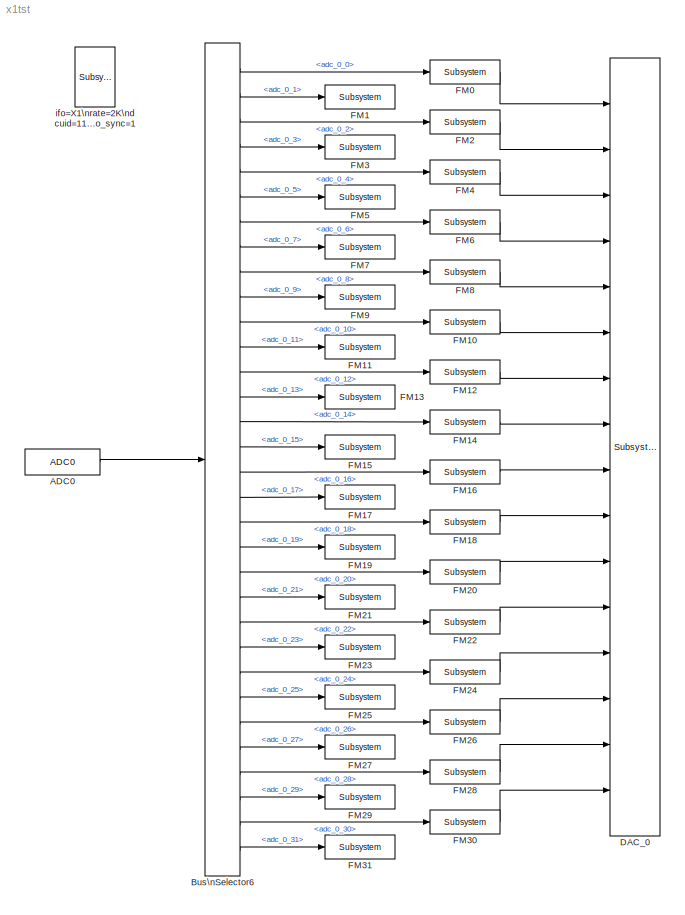
MODEL x1tst
KIND model
BLOCK [Reference] ADC0  REF=cdsAdcx0/ADC0
  AllowZeroVariantControls = off
  AttributesFormatString = %<Description>\\n%<Tag>
  Description = type-GSC_16AI64SSA\ncard_num=0
  GeneratePreprocessorConditionals = off
  Ports = [0, 1]
  PropagateVariantConditions = off
  SID = 931
  ShowPortLabels = FromPortIcon
  SourceBlock = cdsAdcx0/ADC0
  SourceType = SubSystem
  SystemSampleTime = -1
  Tag = cdsAdc
BLOCK [BusSelector] Bus\nSelector6
  AttributesFormatString = %<Description>
  Description = ADC Selector
  OutputAsBus = off
  OutputSignals = adc_0_0,adc_0_1,adc_0_2,adc_0_3,adc_0_4,adc_0_5,adc_0_6,adc_0_7,adc_0_8,adc_0_9,adc_0_10,adc_0_11,adc_0_12,adc_0_13,adc_0_14,adc_0_15,adc_0_16,adc_0_17,adc_0_18,adc_0_19,adc_0_20,adc_0_21,adc_0_22,adc_0_23,adc_0_24,adc_0_25,adc_0_26,adc_0_27,adc_0_28,adc_0_29,adc_0_30,adc_0_31
  Ports = [1, 32]
  SID = 936
BLOCK [Reference] DAC_0  REF=dac/Subsystem  (lib defined in slx_40ef132df75b, slx_b7657ccccc5b, +4 more)
  AllowZeroVariantControls = off
  AttributesFormatString = %<Description>
  Description = type=GSC_16AO16,\ncard_num=0
  GeneratePreprocessorConditionals = off
  Ports = [16]
  PropagateVariantConditions = off
  SID = 1206
  ShowPortLabels = FromPortIcon
  SourceBlock = dac/Subsystem
  SourceType = SubSystem
  SystemSampleTime = -1
BLOCK [Reference] FM0  REF=cdsFilt/Subsystem
  AllowZeroVariantControls = off
  AttributesFormatString = %<Tag>
  Description = Purpose:                                                                                                                                                                                                                                  \nStandard CDS IIR filter module.                                                                                                                                     ...<+1302ch>  <repeated x32 — deduplicated; at blocks: FM0, FM1, FM10, FM11, FM12, FM13, FM14, FM15, FM16, FM17, FM18, FM19, FM2, FM20, FM21, FM22, +16 more>
  GeneratePreprocessorConditionals = off
  Ports = [1, 1]
  PropagateVariantConditions = off
  SID = 941
  ShowPortLabels = FromPortIcon
  SourceBlock = cdsFilt/Subsystem
  SourceType = SubSystem
  SystemSampleTime = -1
  Tag = cdsFilt
BLOCK [Reference] FM1  REF=cdsFilt/Subsystem
  AllowZeroVariantControls = off
  AttributesFormatString = %<Tag>
  GeneratePreprocessorConditionals = off
  Ports = [1, 1]
  PropagateVariantConditions = off
  SID = 942
  ShowPortLabels = FromPortIcon
  SourceBlock = cdsFilt/Subsystem
  SourceType = SubSystem
  SystemSampleTime = -1
  Tag = cdsFilt
BLOCK [Reference] FM10  REF=cdsFilt/Subsystem
  AllowZeroVariantControls = off
  AttributesFormatString = %<Tag>
  GeneratePreprocessorConditionals = off
  Ports = [1, 1]
  PropagateVariantConditions = off
  SID = 956
  ShowPortLabels = FromPortIcon
  SourceBlock = cdsFilt/Subsystem
  SourceType = SubSystem
  SystemSampleTime = -1
  Tag = cdsFilt
BLOCK [Reference] FM11  REF=cdsFilt/Subsystem
  AllowZeroVariantControls = off
  AttributesFormatString = %<Tag>
  GeneratePreprocessorConditionals = off
  Ports = [1, 1]
  PropagateVariantConditions = off
  SID = 957
  ShowPortLabels = FromPortIcon
  SourceBlock = cdsFilt/Subsystem
  SourceType = SubSystem
  SystemSampleTime = -1
  Tag = cdsFilt
BLOCK [Reference] FM12  REF=cdsFilt/Subsystem
  AllowZeroVariantControls = off
  AttributesFormatString = %<Tag>
  GeneratePreprocessorConditionals = off
  Ports = [1, 1]
  PropagateVariantConditions = off
  SID = 958
  ShowPortLabels = FromPortIcon
  SourceBlock = cdsFilt/Subsystem
  SourceType = SubSystem
  SystemSampleTime = -1
  Tag = cdsFilt
BLOCK [Reference] FM13  REF=cdsFilt/Subsystem
  AllowZeroVariantControls = off
  AttributesFormatString = %<Tag>
  GeneratePreprocessorConditionals = off
  Ports = [1, 1]
  PropagateVariantConditions = off
  SID = 959
  ShowPortLabels = FromPortIcon
  SourceBlock = cdsFilt/Subsystem
  SourceType = SubSystem
  SystemSampleTime = -1
  Tag = cdsFilt
BLOCK [Reference] FM14  REF=cdsFilt/Subsystem
  AllowZeroVariantControls = off
  AttributesFormatString = %<Tag>
  GeneratePreprocessorConditionals = off
  Ports = [1, 1]
  PropagateVariantConditions = off
  SID = 960
  ShowPortLabels = FromPortIcon
  SourceBlock = cdsFilt/Subsystem
  SourceType = SubSystem
  SystemSampleTime = -1
  Tag = cdsFilt
BLOCK [Reference] FM15  REF=cdsFilt/Subsystem
  AllowZeroVariantControls = off
  AttributesFormatString = %<Tag>
  GeneratePreprocessorConditionals = off
  Ports = [1, 1]
  PropagateVariantConditions = off
  SID = 961
  ShowPortLabels = FromPortIcon
  SourceBlock = cdsFilt/Subsystem
  SourceType = SubSystem
  SystemSampleTime = -1
  Tag = cdsFilt
BLOCK [Reference] FM16  REF=cdsFilt/Subsystem
  AllowZeroVariantControls = off
  AttributesFormatString = %<Tag>
  GeneratePreprocessorConditionals = off
  Ports = [1, 1]
  PropagateVariantConditions = off
  SID = 980
  ShowPortLabels = FromPortIcon
  SourceBlock = cdsFilt/Subsystem
  SourceType = SubSystem
  SystemSampleTime = -1
  Tag = cdsFilt
BLOCK [Reference] FM17  REF=cdsFilt/Subsystem
  AllowZeroVariantControls = off
  AttributesFormatString = %<Tag>
  GeneratePreprocessorConditionals = off
  Ports = [1, 1]
  PropagateVariantConditions = off
  SID = 981
  ShowPortLabels = FromPortIcon
  SourceBlock = cdsFilt/Subsystem
  SourceType = SubSystem
  SystemSampleTime = -1
  Tag = cdsFilt
BLOCK [Reference] FM18  REF=cdsFilt/Subsystem
  AllowZeroVariantControls = off
  AttributesFormatString = %<Tag>
  GeneratePreprocessorConditionals = off
  Ports = [1, 1]
  PropagateVariantConditions = off
  SID = 982
  ShowPortLabels = FromPortIcon
  SourceBlock = cdsFilt/Subsystem
  SourceType = SubSystem
  SystemSampleTime = -1
  Tag = cdsFilt
BLOCK [Reference] FM19  REF=cdsFilt/Subsystem
  AllowZeroVariantControls = off
  AttributesFormatString = %<Tag>
  GeneratePreprocessorConditionals = off
  Ports = [1, 1]
  PropagateVariantConditions = off
  SID = 983
  ShowPortLabels = FromPortIcon
  SourceBlock = cdsFilt/Subsystem
  SourceType = SubSystem
  SystemSampleTime = -1
  Tag = cdsFilt
BLOCK [Reference] FM2  REF=cdsFilt/Subsystem
  AllowZeroVariantControls = off
  AttributesFormatString = %<Tag>
  GeneratePreprocessorConditionals = off
  Ports = [1, 1]
  PropagateVariantConditions = off
  SID = 948
  ShowPortLabels = FromPortIcon
  SourceBlock = cdsFilt/Subsystem
  SourceType = SubSystem
  SystemSampleTime = -1
  Tag = cdsFilt
BLOCK [Reference] FM20  REF=cdsFilt/Subsystem
  AllowZeroVariantControls = off
  AttributesFormatString = %<Tag>
  GeneratePreprocessorConditionals = off
  Ports = [1, 1]
  PropagateVariantConditions = off
  SID = 984
  ShowPortLabels = FromPortIcon
  SourceBlock = cdsFilt/Subsystem
  SourceType = SubSystem
  SystemSampleTime = -1
  Tag = cdsFilt
BLOCK [Reference] FM21  REF=cdsFilt/Subsystem
  AllowZeroVariantControls = off
  AttributesFormatString = %<Tag>
  GeneratePreprocessorConditionals = off
  Ports = [1, 1]
  PropagateVariantConditions = off
  SID = 985
  ShowPortLabels = FromPortIcon
  SourceBlock = cdsFilt/Subsystem
  SourceType = SubSystem
  SystemSampleTime = -1
  Tag = cdsFilt
BLOCK [Reference] FM22  REF=cdsFilt/Subsystem
  AllowZeroVariantControls = off
  AttributesFormatString = %<Tag>
  GeneratePreprocessorConditionals = off
  Ports = [1, 1]
  PropagateVariantConditions = off
  SID = 986
  ShowPortLabels = FromPortIcon
  SourceBlock = cdsFilt/Subsystem
  SourceType = SubSystem
  SystemSampleTime = -1
  Tag = cdsFilt
BLOCK [Reference] FM23  REF=cdsFilt/Subsystem
  AllowZeroVariantControls = off
  AttributesFormatString = %<Tag>
  GeneratePreprocessorConditionals = off
  Ports = [1, 1]
  PropagateVariantConditions = off
  SID = 987
  ShowPortLabels = FromPortIcon
  SourceBlock = cdsFilt/Subsystem
  SourceType = SubSystem
  SystemSampleTime = -1
  Tag = cdsFilt
BLOCK [Reference] FM24  REF=cdsFilt/Subsystem
  AllowZeroVariantControls = off
  AttributesFormatString = %<Tag>
  GeneratePreprocessorConditionals = off
  Ports = [1, 1]
  PropagateVariantConditions = off
  SID = 988
  ShowPortLabels = FromPortIcon
  SourceBlock = cdsFilt/Subsystem
  SourceType = SubSystem
  SystemSampleTime = -1
  Tag = cdsFilt
BLOCK [Reference] FM25  REF=cdsFilt/Subsystem
  AllowZeroVariantControls = off
  AttributesFormatString = %<Tag>
  GeneratePreprocessorConditionals = off
  Ports = [1, 1]
  PropagateVariantConditions = off
  SID = 989
  ShowPortLabels = FromPortIcon
  SourceBlock = cdsFilt/Subsystem
  SourceType = SubSystem
  SystemSampleTime = -1
  Tag = cdsFilt
BLOCK [Reference] FM26  REF=cdsFilt/Subsystem
  AllowZeroVariantControls = off
  AttributesFormatString = %<Tag>
  GeneratePreprocessorConditionals = off
  Ports = [1, 1]
  PropagateVariantConditions = off
  SID = 990
  ShowPortLabels = FromPortIcon
  SourceBlock = cdsFilt/Subsystem
  SourceType = SubSystem
  SystemSampleTime = -1
  Tag = cdsFilt
BLOCK [Reference] FM27  REF=cdsFilt/Subsystem
  AllowZeroVariantControls = off
  AttributesFormatString = %<Tag>
  GeneratePreprocessorConditionals = off
  Ports = [1, 1]
  PropagateVariantConditions = off
  SID = 991
  ShowPortLabels = FromPortIcon
  SourceBlock = cdsFilt/Subsystem
  SourceType = SubSystem
  SystemSampleTime = -1
  Tag = cdsFilt
BLOCK [Reference] FM28  REF=cdsFilt/Subsystem
  AllowZeroVariantControls = off
  AttributesFormatString = %<Tag>
  GeneratePreprocessorConditionals = off
  Ports = [1, 1]
  PropagateVariantConditions = off
  SID = 992
  ShowPortLabels = FromPortIcon
  SourceBlock = cdsFilt/Subsystem
  SourceType = SubSystem
  SystemSampleTime = -1
  Tag = cdsFilt
BLOCK [Reference] FM29  REF=cdsFilt/Subsystem
  AllowZeroVariantControls = off
  AttributesFormatString = %<Tag>
  GeneratePreprocessorConditionals = off
  Ports = [1, 1]
  PropagateVariantConditions = off
  SID = 993
  ShowPortLabels = FromPortIcon
  SourceBlock = cdsFilt/Subsystem
  SourceType = SubSystem
  SystemSampleTime = -1
  Tag = cdsFilt
BLOCK [Reference] FM3  REF=cdsFilt/Subsystem
  AllowZeroVariantControls = off
  AttributesFormatString = %<Tag>
  GeneratePreprocessorConditionals = off
  Ports = [1, 1]
  PropagateVariantConditions = off
  SID = 949
  ShowPortLabels = FromPortIcon
  SourceBlock = cdsFilt/Subsystem
  SourceType = SubSystem
  SystemSampleTime = -1
  Tag = cdsFilt
BLOCK [Reference] FM30  REF=cdsFilt/Subsystem
  AllowZeroVariantControls = off
  AttributesFormatString = %<Tag>
  GeneratePreprocessorConditionals = off
  Ports = [1, 1]
  PropagateVariantConditions = off
  SID = 994
  ShowPortLabels = FromPortIcon
  SourceBlock = cdsFilt/Subsystem
  SourceType = SubSystem
  SystemSampleTime = -1
  Tag = cdsFilt
BLOCK [Reference] FM31  REF=cdsFilt/Subsystem
  AllowZeroVariantControls = off
  AttributesFormatString = %<Tag>
  GeneratePreprocessorConditionals = off
  Ports = [1, 1]
  PropagateVariantConditions = off
  SID = 995
  ShowPortLabels = FromPortIcon
  SourceBlock = cdsFilt/Subsystem
  SourceType = SubSystem
  SystemSampleTime = -1
  Tag = cdsFilt
BLOCK [Reference] FM4  REF=cdsFilt/Subsystem
  AllowZeroVariantControls = off
  AttributesFormatString = %<Tag>
  GeneratePreprocessorConditionals = off
  Ports = [1, 1]
  PropagateVariantConditions = off
  SID = 950
  ShowPortLabels = FromPortIcon
  SourceBlock = cdsFilt/Subsystem
  SourceType = SubSystem
  SystemSampleTime = -1
  Tag = cdsFilt
BLOCK [Reference] FM5  REF=cdsFilt/Subsystem
  AllowZeroVariantControls = off
  AttributesFormatString = %<Tag>
  GeneratePreprocessorConditionals = off
  Ports = [1, 1]
  PropagateVariantConditions = off
  SID = 951
  ShowPortLabels = FromPortIcon
  SourceBlock = cdsFilt/Subsystem
  SourceType = SubSystem
  SystemSampleTime = -1
  Tag = cdsFilt
BLOCK [Reference] FM6  REF=cdsFilt/Subsystem
  AllowZeroVariantControls = off
  AttributesFormatString = %<Tag>
  GeneratePreprocessorConditionals = off
  Ports = [1, 1]
  PropagateVariantConditions = off
  SID = 952
  ShowPortLabels = FromPortIcon
  SourceBlock = cdsFilt/Subsystem
  SourceType = SubSystem
  SystemSampleTime = -1
  Tag = cdsFilt
BLOCK [Reference] FM7  REF=cdsFilt/Subsystem
  AllowZeroVariantControls = off
  AttributesFormatString = %<Tag>
  GeneratePreprocessorConditionals = off
  Ports = [1, 1]
  PropagateVariantConditions = off
  SID = 953
  ShowPortLabels = FromPortIcon
  SourceBlock = cdsFilt/Subsystem
  SourceType = SubSystem
  SystemSampleTime = -1
  Tag = cdsFilt
BLOCK [Reference] FM8  REF=cdsFilt/Subsystem
  AllowZeroVariantControls = off
  AttributesFormatString = %<Tag>
  GeneratePreprocessorConditionals = off
  Ports = [1, 1]
  PropagateVariantConditions = off
  SID = 954
  ShowPortLabels = FromPortIcon
  SourceBlock = cdsFilt/Subsystem
  SourceType = SubSystem
  SystemSampleTime = -1
  Tag = cdsFilt
BLOCK [Reference] FM9  REF=cdsFilt/Subsystem
  AllowZeroVariantControls = off
  AttributesFormatString = %<Tag>
  GeneratePreprocessorConditionals = off
  Ports = [1, 1]
  PropagateVariantConditions = off
  SID = 955
  ShowPortLabels = FromPortIcon
  SourceBlock = cdsFilt/Subsystem
  SourceType = SubSystem
  SystemSampleTime = -1
  Tag = cdsFilt
BLOCK [Reference] ifo=X1\nrate=2K\ndcuid=11\nhost=dhcp-154\nshmem_daq=1\nspecific_cpu=2\nno_sync=1  REF=cdsParameters/Subsystem
  AllowZeroVariantControls = off
  AttributesFormatString = %<Tag>
  GeneratePreprocessorConditionals = off
  Ports = []
  PropagateVariantConditions = off
  SID = 1205
  ShowPortLabels = FromPortIcon
  SourceBlock = cdsParameters/Subsystem
  SourceType = SubSystem
  SystemSampleTime = -1
  Tag = cdsParameters
LINE ADC0:1 -> Bus\nSelector6:1
LINE Bus\nSelector6:1 -> FM0:1
LINE Bus\nSelector6:10 -> FM9:1
LINE Bus\nSelector6:11 -> FM10:1
LINE Bus\nSelector6:12 -> FM11:1
LINE Bus\nSelector6:13 -> FM12:1
LINE Bus\nSelector6:14 -> FM13:1
LINE Bus\nSelector6:15 -> FM14:1
LINE Bus\nSelector6:16 -> FM15:1
LINE Bus\nSelector6:17 -> FM16:1
LINE Bus\nSelector6:18 -> FM17:1
LINE Bus\nSelector6:19 -> FM18:1
LINE Bus\nSelector6:2 -> FM1:1
LINE Bus\nSelector6:20 -> FM19:1
LINE Bus\nSelector6:21 -> FM20:1
LINE Bus\nSelector6:22 -> FM21:1
LINE Bus\nSelector6:23 -> FM22:1
LINE Bus\nSelector6:24 -> FM23:1
LINE Bus\nSelector6:25 -> FM24:1
LINE Bus\nSelector6:26 -> FM25:1
LINE Bus\nSelector6:27 -> FM26:1
LINE Bus\nSelector6:28 -> FM27:1
LINE Bus\nSelector6:29 -> FM28:1
LINE Bus\nSelector6:3 -> FM2:1
LINE Bus\nSelector6:30 -> FM29:1
LINE Bus\nSelector6:31 -> FM30:1
LINE Bus\nSelector6:32 -> FM31:1
LINE Bus\nSelector6:4 -> FM3:1
LINE Bus\nSelector6:5 -> FM4:1
LINE Bus\nSelector6:6 -> FM5:1
LINE Bus\nSelector6:7 -> FM6:1
LINE Bus\nSelector6:8 -> FM7:1
LINE Bus\nSelector6:9 -> FM8:1
LINE FM0:1 -> DAC_0:1
LINE FM10:1 -> DAC_0:6
LINE FM12:1 -> DAC_0:7
LINE FM14:1 -> DAC_0:8
LINE FM16:1 -> DAC_0:9
LINE FM18:1 -> DAC_0:10
LINE FM20:1 -> DAC_0:11
LINE FM22:1 -> DAC_0:12
LINE FM24:1 -> DAC_0:13
LINE FM26:1 -> DAC_0:14
LINE FM28:1 -> DAC_0:15
LINE FM2:1 -> DAC_0:2
LINE FM30:1 -> DAC_0:16
LINE FM4:1 -> DAC_0:3
LINE FM6:1 -> DAC_0:4
LINE FM8:1 -> DAC_0:5
